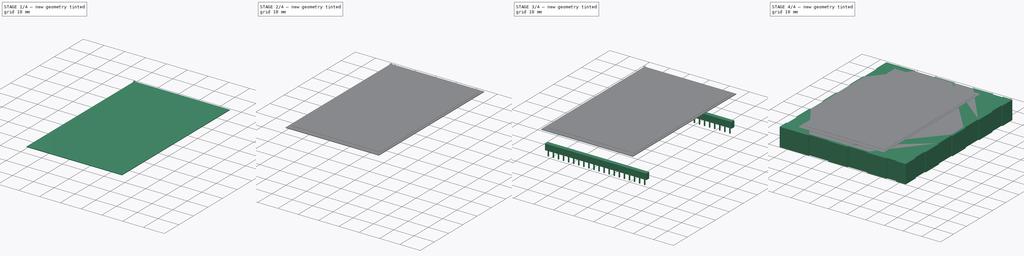
[diagram: build sequence overview — one tinted view per stage of 4, left to right]
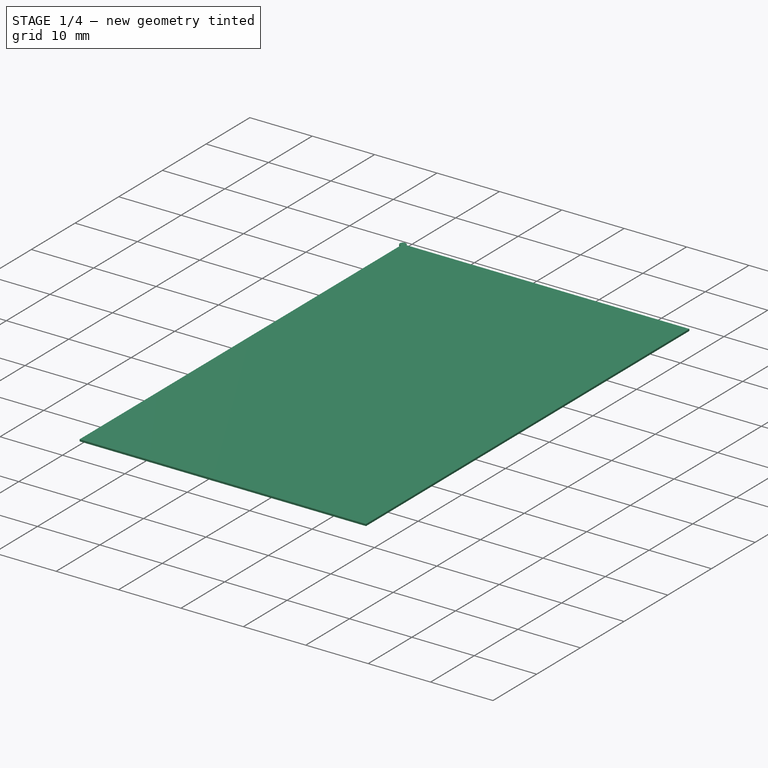
[diagram: stage 1 of 4 — iso view after this stage's code; geometry added in this stage tinted green]
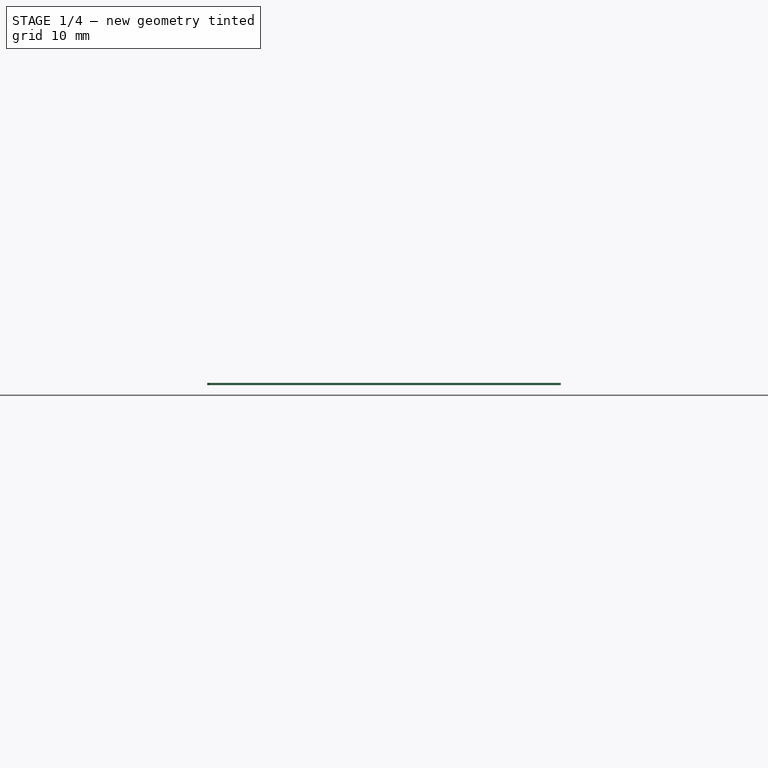
[diagram: stage 1 of 4 — front view after this stage's code; geometry added in this stage tinted green]
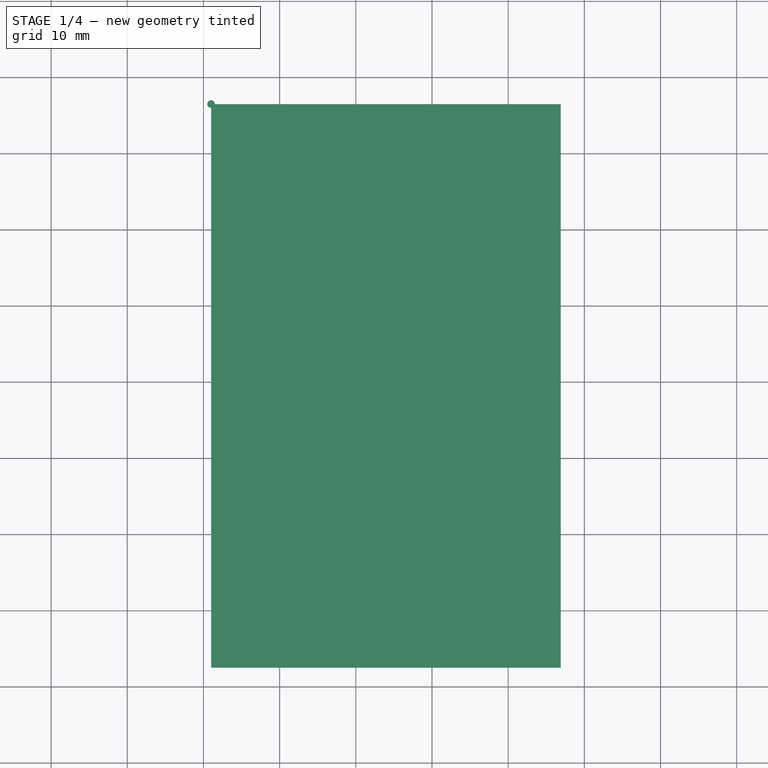
[diagram: stage 1 of 4 — top view after this stage's code; geometry added in this stage tinted green]
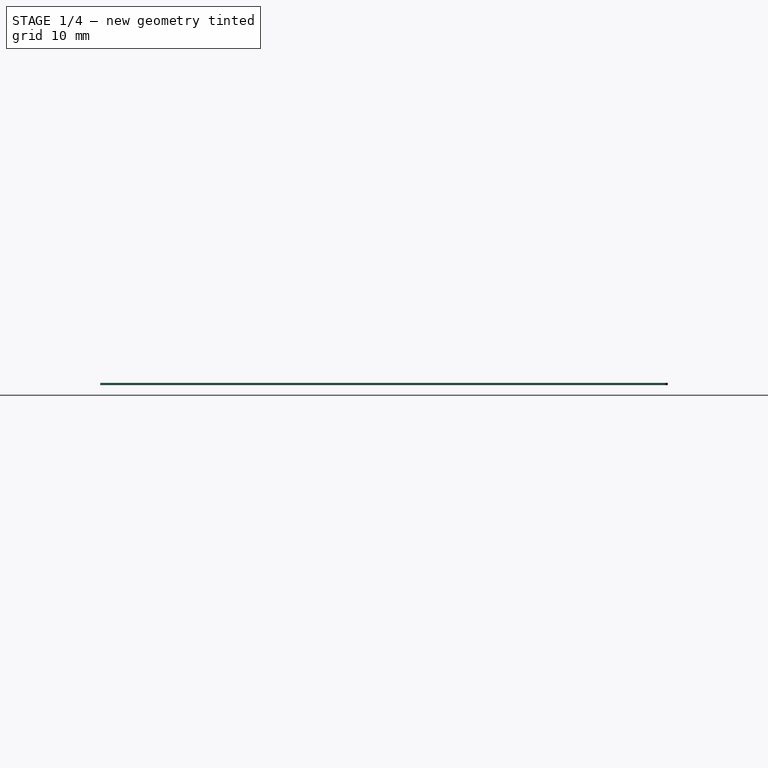
[diagram: stage 1 of 4 — right view after this stage's code; geometry added in this stage tinted green]
FCSTD DOCUMENT  (FreeCAD 0.17R11223 (Git))
Label: EA_eDIP160-XXX_6
License: All rights reserved
LicenseURL: http://en.wikipedia.org/wiki/All_rights_reserved
objects: Part::Box×5, Sketcher::SketchObject×1, PartDesign::Pad×1, PartDesign::Body×1, Part::Fillet×1, Part::FeaturePython×1, Part::Cylinder×1, Part::MultiFuse×1
note: 13 computed .brp shape members not serialized (recipe doc carries the construction recipe); baked Part::Feature solids carry a one-line shape summary decoded from their .brp

FEATURE [Part::Box] Box003  label="DisplayFrame"
  AttacherType = Attacher::AttachEngine3D
  Height = 0.3
  Length = 45.9
  Placement = pos=(1,-67.5,11.9) rot=(0,0,1;0rad)
  Width = 74
FEATURE [Part::Cylinder] Cylinder
  Angle = 360
  AttacherType = Attacher::AttachEngine3D
  Height = 0.3
  Placement = pos=(1,6.5,11.9) rot=(0,0,1;0rad)
  Radius = 0.5
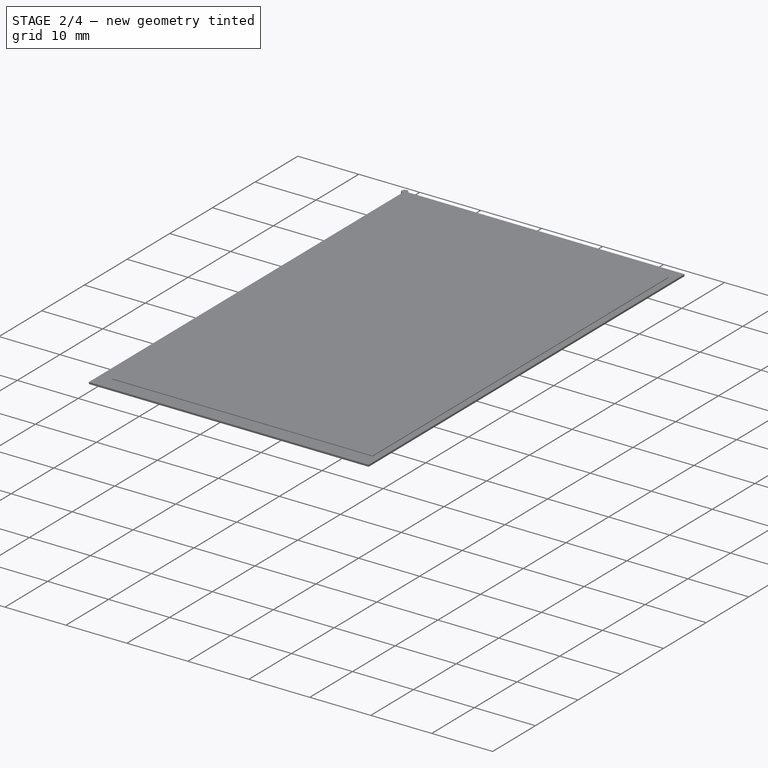
[diagram: stage 2 of 4 — iso view after this stage's code; geometry added in this stage tinted green]
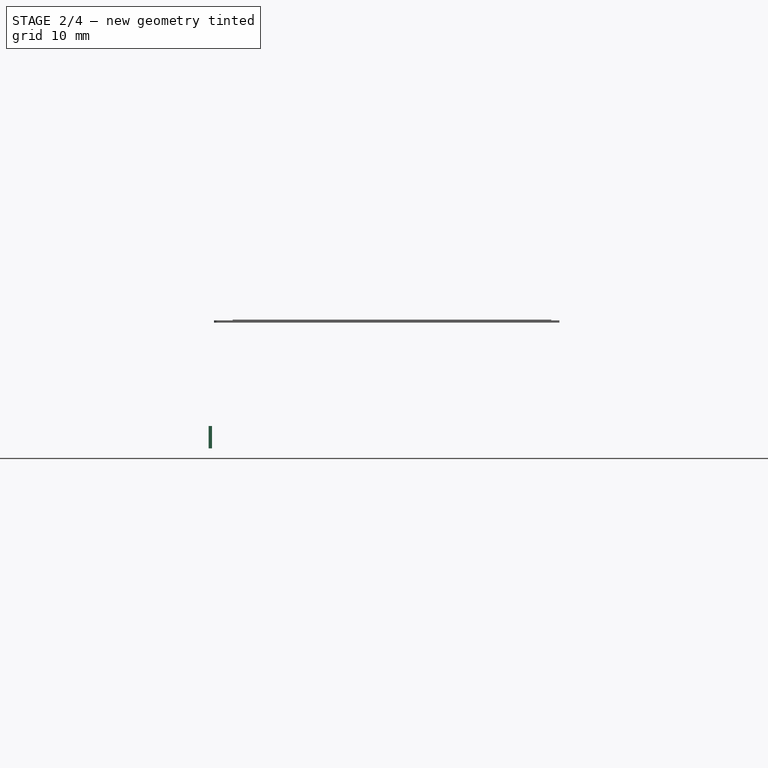
[diagram: stage 2 of 4 — front view after this stage's code; geometry added in this stage tinted green]
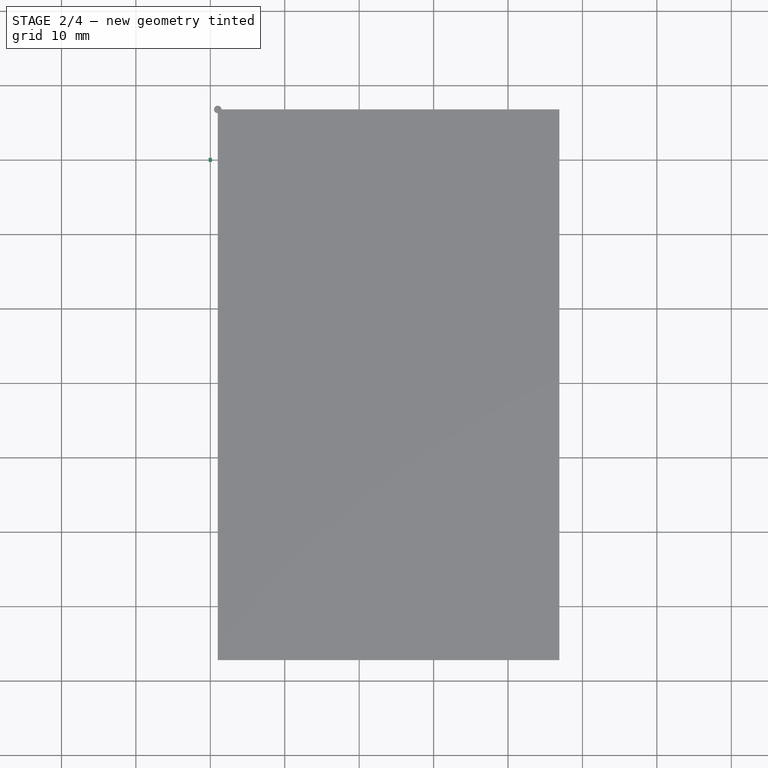
[diagram: stage 2 of 4 — top view after this stage's code; geometry added in this stage tinted green]
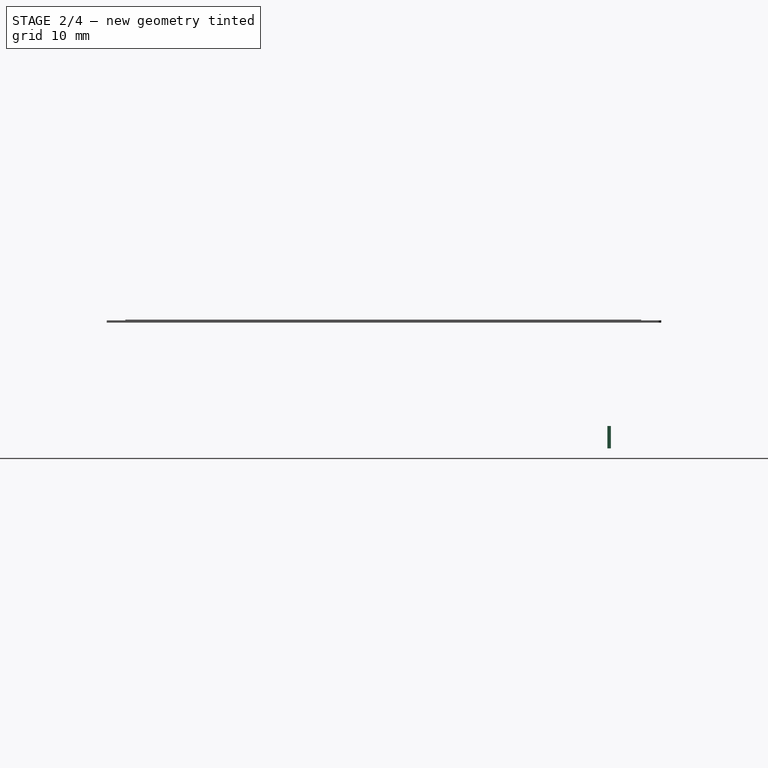
[diagram: stage 2 of 4 — right view after this stage's code; geometry added in this stage tinted green]
FEATURE [Part::Box] Box002  label="Pin"
  AttacherType = Attacher::AttachEngine3D
  Height = 3
  Length = 0.46
  Placement = pos=(-0.23,-0.23,-5) rot=(0,0,1;0rad)
  Width = 0.46
FEATURE [Part::Box] Box004  label="Display"
  AttacherType = Attacher::AttachEngine3D
  Height = 0.3
  Length = 42.8
  Placement = pos=(3,-65,12) rot=(0,0,1;0rad)
  Width = 69.3
FEATURE [Part::MultiFuse] Fusion  label="DisplayFrame001"
  Shapes = -> [Box003,Cylinder]
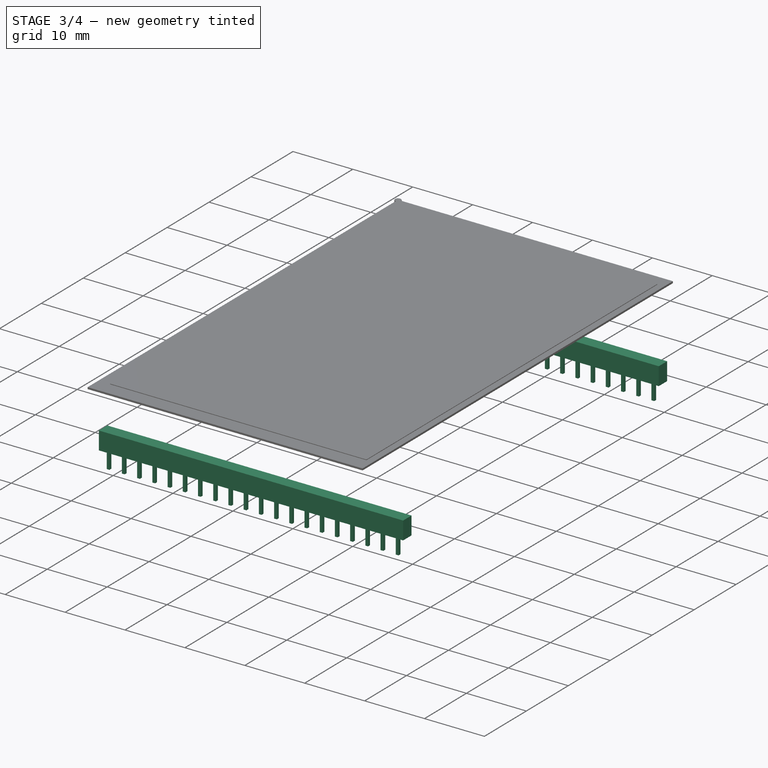
[diagram: stage 3 of 4 — iso view after this stage's code; geometry added in this stage tinted green]
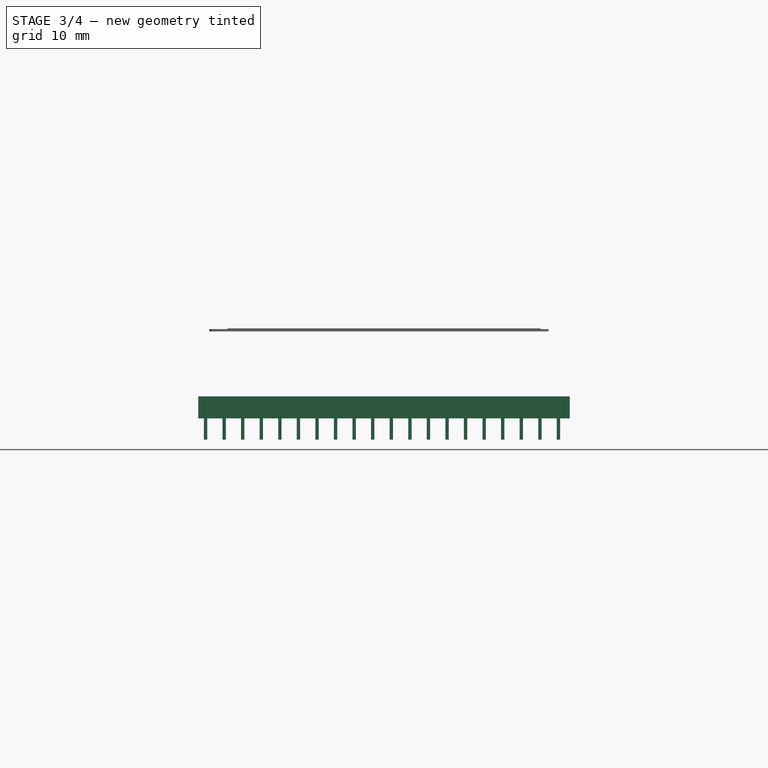
[diagram: stage 3 of 4 — front view after this stage's code; geometry added in this stage tinted green]
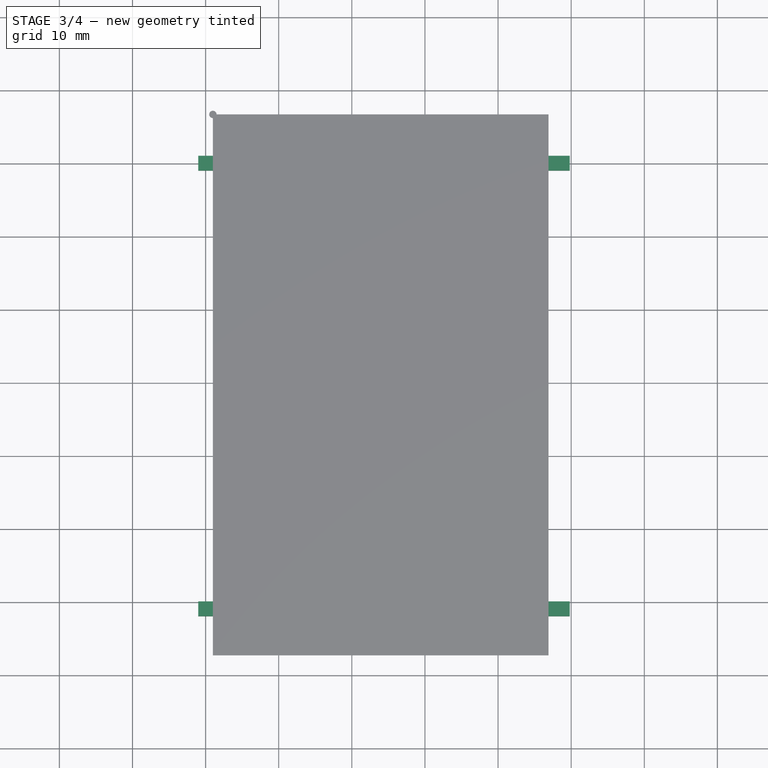
[diagram: stage 3 of 4 — top view after this stage's code; geometry added in this stage tinted green]
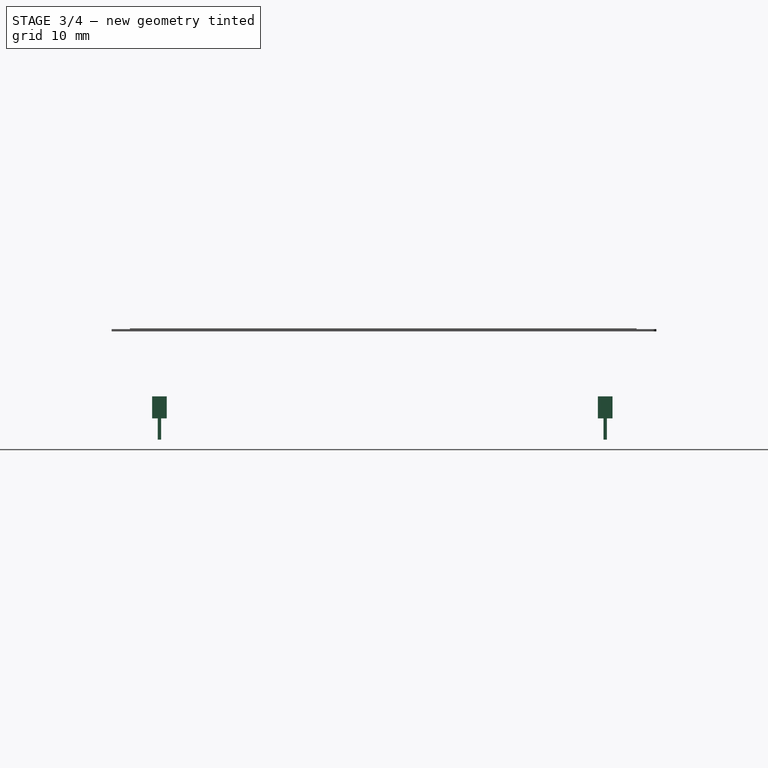
[diagram: stage 3 of 4 — right view after this stage's code; geometry added in this stage tinted green]
FEATURE [Part::Box] Box  label="Kub"
  AttacherType = Attacher::AttachEngine3D
  Height = 3
  Length = 50.8
  Placement = pos=(-1,-1,0) rot=(0,0,1;0rad)
  Width = 2
FEATURE [Part::Box] Box001  label="Kub001"
  AttacherType = Attacher::AttachEngine3D
  Height = 3
  Length = 50.8
  Placement = pos=(-1,-61.96,0) rot=(0,0,1;0rad)
  Width = 2
FEATURE [Part::FeaturePython] Array  label="Pins"  # Draft array (typed FeaturePython)
  Angle = 360
  ArrayType = 0
  Axis = (0,0,1)
  Base = -> Box002
  Center = (0,0,0)
  Fuse = false
  IntervalAxis = (0,0,0)
  IntervalX = (2.54,0,0)
  IntervalY = (0,-60.96,0)
  IntervalZ = (0,0,0)
  NumberPolar = 1
  NumberX = 20
  NumberY = 2
  NumberZ = 1
  Placement = pos=(0,0,2.1) rot=(0,0,1;0rad)
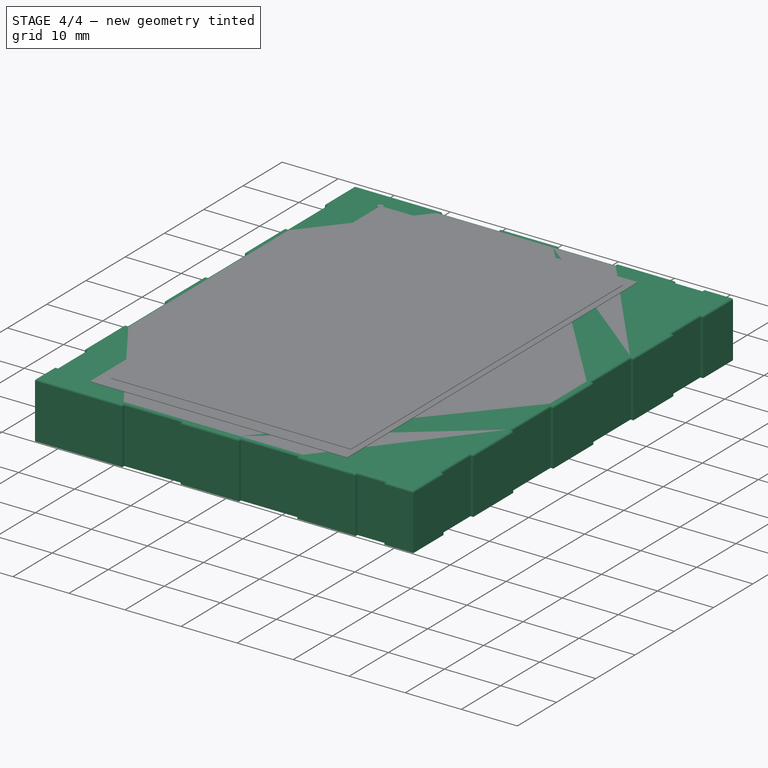
[diagram: stage 4 of 4 — iso view after this stage's code; geometry added in this stage tinted green]
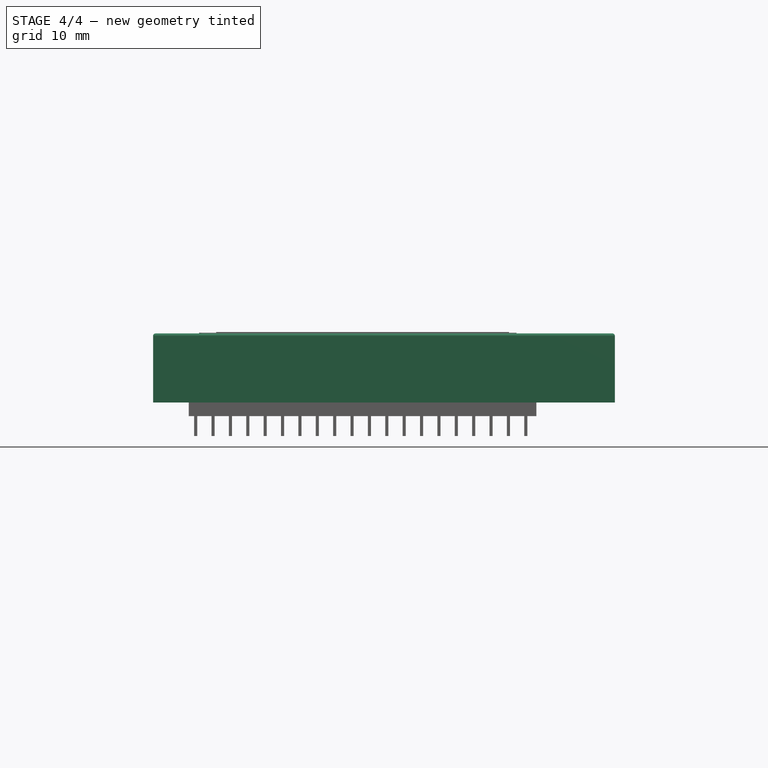
[diagram: stage 4 of 4 — front view after this stage's code; geometry added in this stage tinted green]
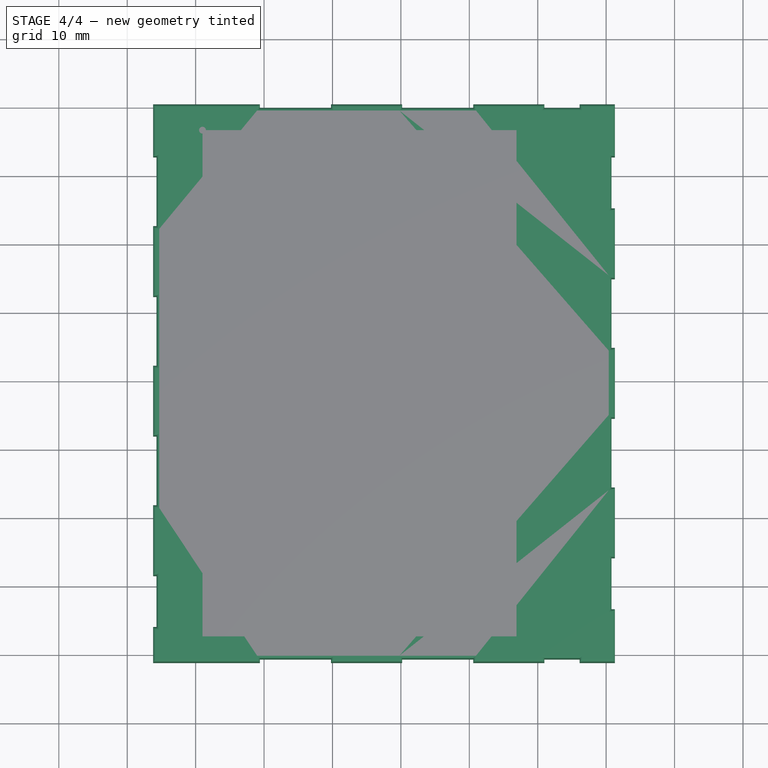
[diagram: stage 4 of 4 — top view after this stage's code; geometry added in this stage tinted green]
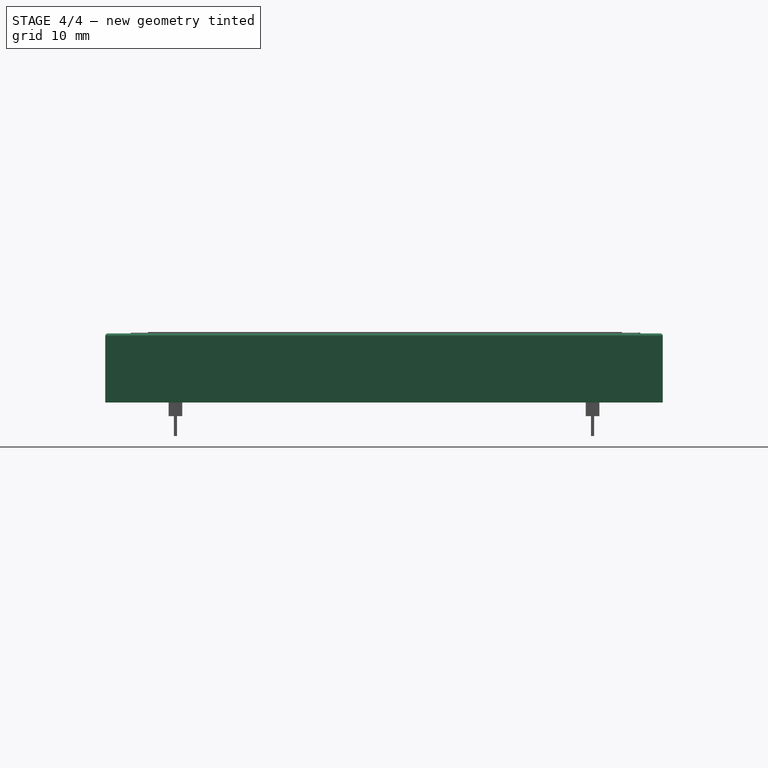
[diagram: stage 4 of 4 — right view after this stage's code; geometry added in this stage tinted green]
FEATURE [Sketcher::SketchObject] Sketch
  MapMode = 5
  Support = -> [XY_Plane]
  sketch-geometry (60):
    g0: LineSegment StartX=9.38 StartY=10.27 StartZ=0 EndX=9.38 EndY=9.77 EndZ=0
    g1: LineSegment StartX=9.38 StartY=9.77 StartZ=0 EndX=19.78 EndY=9.77 EndZ=0
    g2: LineSegment StartX=19.78 StartY=9.77 StartZ=0 EndX=19.78 EndY=10.27 EndZ=0
    g3: LineSegment StartX=19.78 StartY=10.27 StartZ=0 EndX=30.18 EndY=10.27 EndZ=0
    g4: LineSegment StartX=30.18 StartY=10.27 StartZ=0 EndX=30.18 EndY=9.77 EndZ=0
    g5: LineSegment StartX=30.18 StartY=9.77 StartZ=0 EndX=40.58 EndY=9.77 EndZ=0
    g6: LineSegment StartX=40.58 StartY=9.77 StartZ=0 EndX=40.58 EndY=10.27 EndZ=0
    g7: LineSegment StartX=40.58 StartY=10.27 StartZ=0 EndX=50.98 EndY=10.27 EndZ=0
    g8: LineSegment StartX=50.98 StartY=10.27 StartZ=0 EndX=50.98 EndY=9.77 EndZ=0
    g9: LineSegment StartX=50.98 StartY=9.77 StartZ=0 EndX=56.13 EndY=9.77 EndZ=0
    g10: LineSegment StartX=56.13 StartY=9.77 StartZ=0 EndX=56.13 EndY=10.27 EndZ=0
    g11: LineSegment StartX=56.13 StartY=10.27 StartZ=0 EndX=61.28 EndY=10.27 EndZ=0
    g12: LineSegment StartX=61.28 StartY=10.27 StartZ=0 EndX=61.28 EndY=2.67 EndZ=0
    g13: LineSegment StartX=61.28 StartY=2.67 StartZ=0 EndX=60.78 EndY=2.67 EndZ=0
    g14: LineSegment StartX=60.78 StartY=2.67 StartZ=0 EndX=60.78 EndY=-4.93 EndZ=0
    g15: LineSegment StartX=60.78 StartY=-4.93 StartZ=0 EndX=61.28 EndY=-4.93 EndZ=0
    g16: LineSegment StartX=61.28 StartY=-4.93 StartZ=0 EndX=61.28 EndY=-15.13 EndZ=0
    g17: LineSegment StartX=61.28 StartY=-15.13 StartZ=0 EndX=60.78 EndY=-15.13 EndZ=0
    g18: LineSegment StartX=60.78 StartY=-15.13 StartZ=0 EndX=60.78 EndY=-25.33 EndZ=0
    g19: LineSegment StartX=60.78 StartY=-25.33 StartZ=0 EndX=61.28 EndY=-25.33 EndZ=0
    g20: LineSegment StartX=61.28 StartY=-25.33 StartZ=0 EndX=61.28 EndY=-35.53 EndZ=0
    g21: LineSegment StartX=61.28 StartY=-35.53 StartZ=0 EndX=60.78 EndY=-35.53 EndZ=0
    g22: LineSegment StartX=60.78 StartY=-35.53 StartZ=0 EndX=60.78 EndY=-45.73 EndZ=0
    g23: LineSegment StartX=60.78 StartY=-45.73 StartZ=0 EndX=61.28 EndY=-45.73 EndZ=0
    g24: LineSegment StartX=61.28 StartY=-45.73 StartZ=0 EndX=61.28 EndY=-55.93 EndZ=0
    g25: LineSegment StartX=61.28 StartY=-55.93 StartZ=0 EndX=60.78 EndY=-55.93 EndZ=0
    g26: LineSegment StartX=60.78 StartY=-55.93 StartZ=0 EndX=60.78 EndY=-63.53 EndZ=0
    g27: LineSegment StartX=60.78 StartY=-63.53 StartZ=0 EndX=61.28 EndY=-63.53 EndZ=0
    g28: LineSegment StartX=61.28 StartY=-63.53 StartZ=0 EndX=61.28 EndY=-71.23 EndZ=0
    g29: LineSegment StartX=61.28 StartY=-71.23 StartZ=0 EndX=56.13 EndY=-71.23 EndZ=0
    g30: LineSegment StartX=56.13 StartY=-71.23 StartZ=0 EndX=56.13 EndY=-70.73 EndZ=0
    g31: LineSegment StartX=56.13 StartY=-70.73 StartZ=0 EndX=50.98 EndY=-70.73 EndZ=0
    g32: LineSegment StartX=50.98 StartY=-70.73 StartZ=0 EndX=50.98 EndY=-71.23 EndZ=0
    g33: LineSegment StartX=50.98 StartY=-71.23 StartZ=0 EndX=40.58 EndY=-71.23 EndZ=0
    g34: LineSegment StartX=40.58 StartY=-71.23 StartZ=0 EndX=40.58 EndY=-70.73 EndZ=0
    g35: LineSegment StartX=40.58 StartY=-70.73 StartZ=0 EndX=30.18 EndY=-70.73 EndZ=0
    g36: LineSegment StartX=30.18 StartY=-70.73 StartZ=0 EndX=30.18 EndY=-71.23 EndZ=0
    g37: LineSegment StartX=30.18 StartY=-71.23 StartZ=0 EndX=19.78 EndY=-71.23 EndZ=0
    g38: LineSegment StartX=19.78 StartY=-71.23 StartZ=0 EndX=19.78 EndY=-70.73 EndZ=0
    g39: LineSegment StartX=19.78 StartY=-70.73 StartZ=0 EndX=9.38 EndY=-70.73 EndZ=0
    g40: LineSegment StartX=9.38 StartY=-70.73 StartZ=0 EndX=9.38 EndY=-71.23 EndZ=0
    g41: LineSegment StartX=9.38 StartY=-71.23 StartZ=0 EndX=-6.22 EndY=-71.23 EndZ=0
    g42: LineSegment StartX=-6.22 StartY=-71.23 StartZ=0 EndX=-6.22 EndY=-66.13 EndZ=0
    g43: LineSegment StartX=-6.22 StartY=-66.13 StartZ=0 EndX=-5.72 EndY=-66.13 EndZ=0
    g44: LineSegment StartX=-5.72 StartY=-66.13 StartZ=0 EndX=-5.72 EndY=-58.53 EndZ=0
    g45: LineSegment StartX=-5.72 StartY=-58.53 StartZ=0 EndX=-6.22 EndY=-58.53 EndZ=0
    g46: LineSegment StartX=-6.22 StartY=-58.53 StartZ=0 EndX=-6.22 EndY=-48.33 EndZ=0
    g47: LineSegment StartX=-6.22 StartY=-48.33 StartZ=0 EndX=-5.72 EndY=-48.33 EndZ=0
    g48: LineSegment StartX=-5.72 StartY=-48.33 StartZ=0 EndX=-5.72 EndY=-38.13 EndZ=0
    g49: LineSegment StartX=-5.72 StartY=-38.13 StartZ=0 EndX=-6.22 EndY=-38.13 EndZ=0
    g50: LineSegment StartX=-6.22 StartY=-38.13 StartZ=0 EndX=-6.22 EndY=-27.93 EndZ=0
    g51: LineSegment StartX=-6.22 StartY=-27.93 StartZ=0 EndX=-5.72 EndY=-27.93 EndZ=0
    g52: LineSegment StartX=-5.72 StartY=-27.93 StartZ=0 EndX=-5.72 EndY=-17.73 EndZ=0
    g53: LineSegment StartX=-5.72 StartY=-17.73 StartZ=0 EndX=-6.22 EndY=-17.73 EndZ=0
    g54: LineSegment StartX=-6.22 StartY=-17.73 StartZ=0 EndX=-6.22 EndY=-7.53 EndZ=0
    g55: LineSegment StartX=-6.22 StartY=-7.53 StartZ=0 EndX=-5.72 EndY=-7.53 EndZ=0
    g56: LineSegment StartX=-5.72 StartY=-7.53 StartZ=0 EndX=-5.72 EndY=2.67 EndZ=0
    g57: LineSegment StartX=-5.72 StartY=2.67 StartZ=0 EndX=-6.22 EndY=2.67 EndZ=0
    g58: LineSegment StartX=-6.22 StartY=10.27 StartZ=0 EndX=-6.22 EndY=2.67 EndZ=0
    g59: LineSegment StartX=-6.22 StartY=10.27 StartZ=0 EndX=9.38 EndY=10.27 EndZ=0
  constraints (180):
    c: Vertical(g0)
    c: Coincident(g0,g1)
    c: Horizontal(g1)
    c: Coincident(g1,g2)
    c: Vertical(g2)
    c: Coincident(g2,g3)
    c: Horizontal(g3)
    c: Coincident(g3,g4)
    c: Vertical(g4)
    c: Coincident(g4,g5)
    c: Horizontal(g5)
    c: Coincident(g5,g6)
    c: Vertical(g6)
    c: Coincident(g6,g7)
    c: Horizontal(g7)
    c: Coincident(g7,g8)
    c: Vertical(g8)
    c: Coincident(g8,g9)
    c: Horizontal(g9)
    c: Coincident(g9,g10)
    c: Vertical(g10)
    c: Coincident(g10,g11)
    c: Horizontal(g11)
    c: Coincident(g11,g12)
    c: Vertical(g12)
    c: Coincident(g12,g13)
    c: Horizontal(g13)
    c: Coincident(g13,g14)
    c: Vertical(g14)
    c: Coincident(g14,g15)
    c: Horizontal(g15)
    c: Coincident(g15,g16)
    c: Vertical(g16)
    c: Coincident(g16,g17)
    c: Horizontal(g17)
    c: Coincident(g17,g18)
    c: Vertical(g18)
    c: Coincident(g18,g19)
    c: Horizontal(g19)
    c: Coincident(g19,g20)
    c: Vertical(g20)
    c: Coincident(g20,g21)
    c: Horizontal(g21)
    c: Coincident(g21,g22)
    c: Vertical(g22)
    c: Coincident(g22,g23)
    c: Horizontal(g23)
    c: Coincident(g23,g24)
    c: Vertical(g24)
    c: Coincident(g24,g25)
    c: Horizontal(g25)
    c: Coincident(g25,g26)
    c: Vertical(g26)
    c: Coincident(g26,g27)
    c: Horizontal(g27)
    c: Coincident(g27,g28)
    c: Vertical(g28)
    c: Coincident(g28,g29)
    c: Horizontal(g29)
    c: Coincident(g29,g30)
    c: Vertical(g30)
    c: Coincident(g30,g31)
    c: Horizontal(g31)
    c: Coincident(g31,g32)
    c: Vertical(g32)
    c: Coincident(g32,g33)
    c: Horizontal(g33)
    c: Coincident(g33,g34)
    c: Vertical(g34)
    c: Coincident(g34,g35)
    c: Horizontal(g35)
    c: Coincident(g35,g36)
    c: Vertical(g36)
    c: Coincident(g36,g37)
    c: Horizontal(g37)
    c: Coincident(g37,g38)
    c: Vertical(g38)
    c: Coincident(g38,g39)
    c: Horizontal(g39)
    c: Coincident(g39,g40)
    c: Vertical(g40)
    c: Coincident(g40,g41)
    c: Horizontal(g41)
    c: Coincident(g41,g42)
    c: Vertical(g42)
    c: Coincident(g42,g43)
    c: Horizontal(g43)
    c: Coincident(g43,g44)
    c: Vertical(g44)
    c: Coincident(g44,g45)
    c: Horizontal(g45)
    c: Coincident(g45,g46)
    c: Vertical(g46)
    c: Coincident(g46,g47)
    c: Horizontal(g47)
    c: Coincident(g47,g48)
    c: Vertical(g48)
    c: Coincident(g48,g49)
    c: Horizontal(g49)
    c: Coincident(g49,g50)
    c: Vertical(g50)
    c: Coincident(g50,g51)
    c: Horizontal(g51)
    c: Coincident(g51,g52)
    c: Vertical(g52)
    c: Coincident(g52,g53)
    c: Horizontal(g53)
    c: Coincident(g53,g54)
    c: Vertical(g54)
    c: Coincident(g54,g55)
    c: Horizontal(g55)
    c: Coincident(g55,g56)
    c: Vertical(g56)
    c: Coincident(g56,g57)
    c: Horizontal(g57)
    c: DistanceX(g13,g13) = 0.5
    c: DistanceX(g15,g15) = 0.5
    c: DistanceX(g17,g17) = 0.5
    c: DistanceX(g19,g19) = 0.5
    c: DistanceX(g21,g21) = 0.5
    c: DistanceX(g23,g23) = 0.5
    c: DistanceX(g25,g25) = 0.5
    c: DistanceX(g27,g27) = 0.5
    c: DistanceY(g30,g30) = 0.5
    c: DistanceY(g32,g32) = 0.5
    c: DistanceY(g34,g34) = 0.5
    c: DistanceY(g36,g36) = 0.5
    c: DistanceY(g38,g38) = 0.5
    c: DistanceY(g40,g40) = 0.5
    c: DistanceX(g43,g43) = 0.5
    c: DistanceX(g45,g45) = 0.5
    c: DistanceX(g47,g47) = 0.5
    c: DistanceX(g49,g49) = 0.5
    c: DistanceX(g51,g51) = 0.5
    c: DistanceX(g53,g53) = 0.5
    c: DistanceX(g55,g55) = 0.5
    c: DistanceX(g57,g57) = 0.5
    c: Coincident(g58,g57)
    c: Vertical(g58)
    c: Coincident(g59,g58)
    c: Coincident(g59,g0)
    c: Horizontal(g59)
    c: DistanceY(g10,g10) = 0.5
    c: DistanceY(g8,g8) = 0.5
    c: DistanceY(g6,g6) = 0.5
    c: DistanceY(g4,g4) = 0.5
    c: DistanceY(g2,g2) = 0.5
    c: DistanceY(g0,g0) = 0.5
    c: DistanceX(g58,g11) = 67.5
    c: DistanceY(g41,g58) = 81.5
    c: DistanceX(g1,g1) = 10.4
    c: DistanceX(g3,g3) = 10.4
    c: DistanceX(g5,g5) = 10.4
    c: DistanceX(g7,g7) = 10.4
    c: DistanceX(g59,g59) = 15.6
    c: DistanceX(g9,g9) = 5.15
    c: DistanceY(g16,g16) = 10.2
    c: DistanceY(g18,g18) = 10.2
    c: DistanceY(g20,g20) = 10.2
    c: DistanceY(g22,g22) = 10.2
    c: DistanceY(g24,g24) = 10.2
    c: DistanceY(g12,g12) = 7.6
    c: DistanceY(g14,g14) = 7.6
    c: DistanceY(g26,g26) = 7.6
    c: DistanceX(g41,g41) = 15.6
    c: DistanceX(g39,g39) = 10.4
    c: DistanceX(g37,g37) = 10.4
    c: DistanceX(g35,g35) = 10.4
    c: DistanceX(g33,g33) = 10.4
    c: DistanceX(g31,g31) = 5.15
    c: DistanceY(g58,g58) = 7.6
    c: DistanceY(g44,g44) = 7.6
    c: DistanceY(g56,g56) = 10.2
    c: DistanceY(g54,g54) = 10.2
    c: DistanceY(g52,g52) = 10.2
    c: DistanceY(g50,g50) = 10.2
    c: DistanceY(g48,g48) = 10.2
    c: DistanceY(g46,g46) = 10.2
    c: DistanceY(g-1,g58) = 10.27
    c: DistanceX(g58,g-1) = 6.22
FEATURE [PartDesign::Pad] Pad
  Length = 10.1
  Length2 = 100
  Profile = -> Sketch
  Type = 0
FEATURE [PartDesign::Body] Body
  Group = -> [Sketch,Pad]
  Origin = -> BodyOrigin
  Tip = -> Pad
FEATURE [Part::Fillet] Fillet
  Base = -> Pad
  Edges = 60 edges r=0.4: [Edge4,Edge7,Edge10,Edge13,Edge16,Edge19,Edge22,Edge25,Edge28,Edge31,Edge34,Edge37,Edge40,Edge43,Edge46,Edge49,Edge52,Edge55,Edge58,Edge61,Edge64,Edge67,Edge70,Edge73,Edge76,Edge79,Edge82,Edge85,Edge88,Edge91,Edge94,Edge97,Edge100,Edge103,Edge106,Edge109,Edge112,Edge115,Edge118,Edge121,Edge124,+19 more]
  Placement = pos=(0,0,2) rot=(0,0,1;0rad)
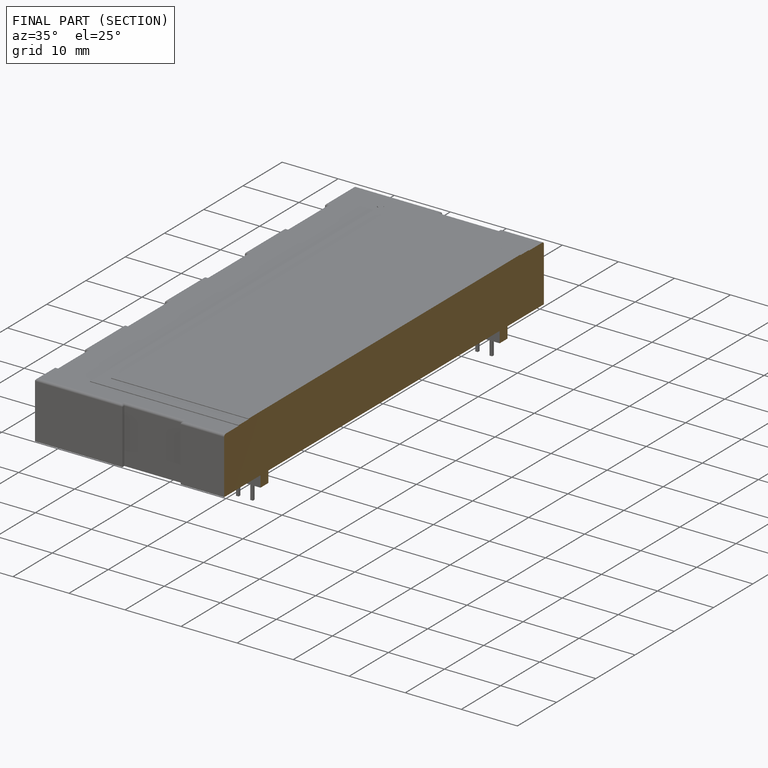
[diagram: finished part — half-section view (interior)]
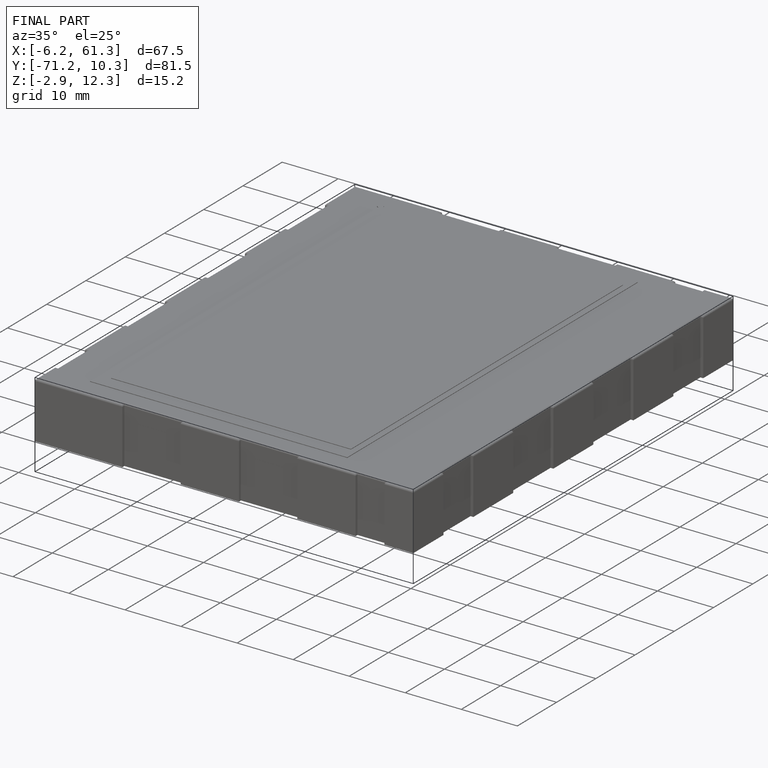
[diagram: finished part — iso view with bounding-box wireframe]
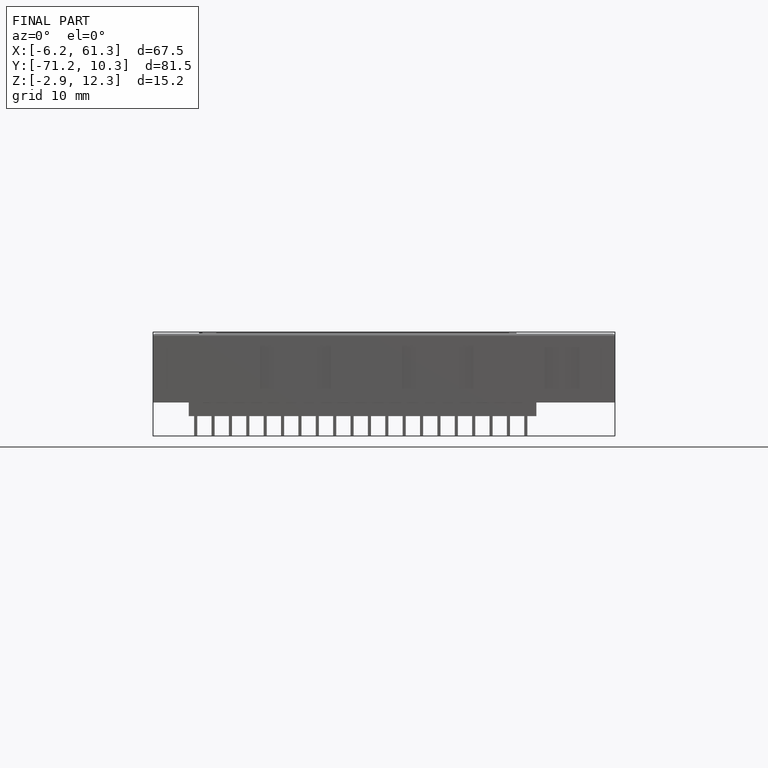
[diagram: finished part — front view with bounding-box wireframe]
